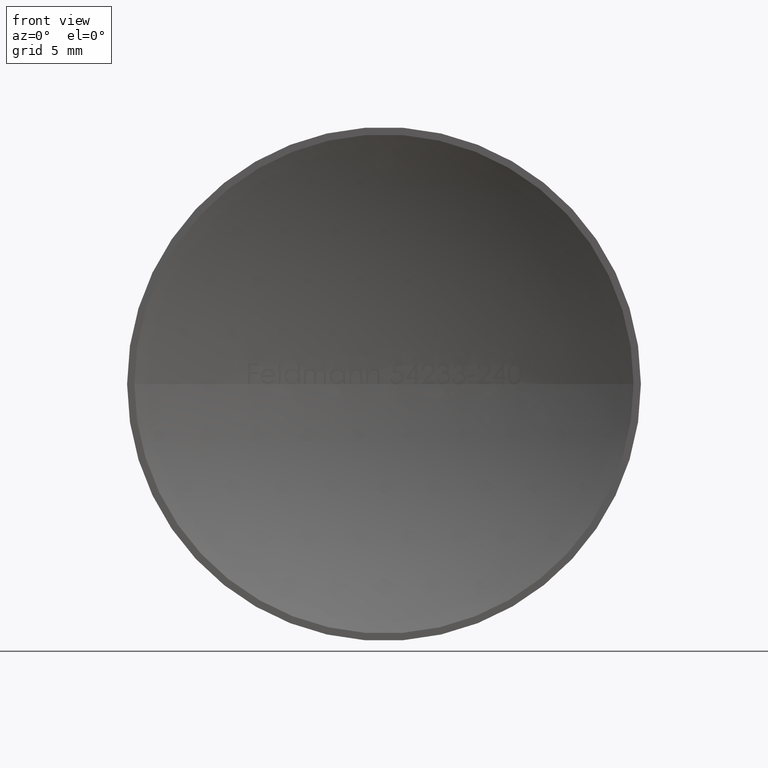
[diagram: clean part render]
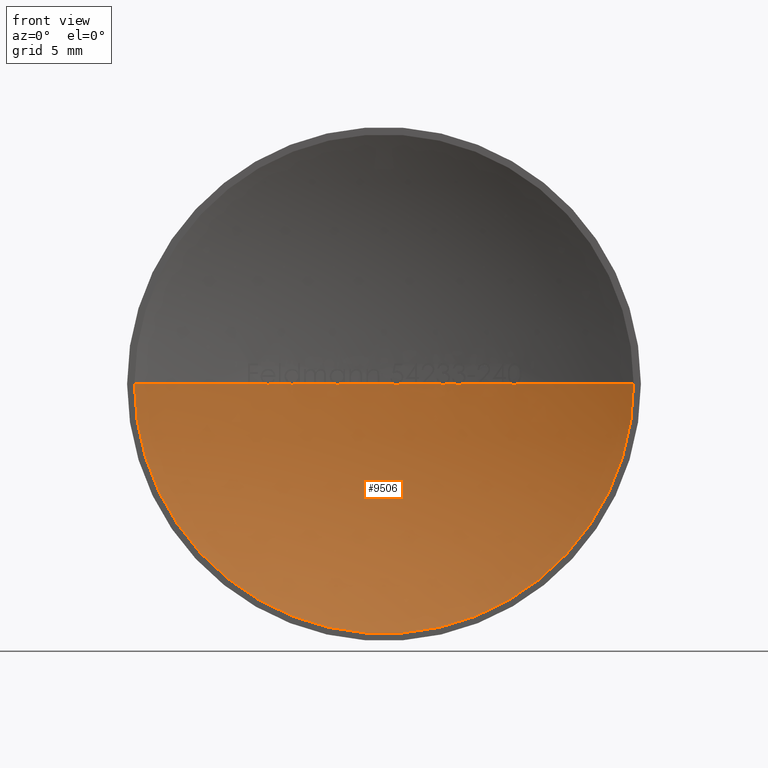
[diagram: same view with one face highlighted and labeled with its STEP entity id]
A machine part, front view. The second image highlights one B-rep face of the part: STEP entity #9506.
In plain terms, the highlighted spherical surface has radius 35.4903 mm.
Its self-contained STEP definition (entity closure, byte-faithful):
#7 = ORIENTED_EDGE ( 'NONE', *, *, #6377, .T. ) ;
#96 = CARTESIAN_POINT ( 'NONE',  ( -8.912727029914522700, 2.862643387927424200, 1.091494262885918000E-015 ) ) ;
#152 = CARTESIAN_POINT ( 'NONE',  ( 4.738650280871648400, 3.682238128339618800, -0.01193484231525396800 ) ) ;
#196 = DIRECTION ( 'NONE',  ( 0.0000000000000000000, -0.0000000000000000000, 1.000000000000000000 ) ) ;
#199 = CARTESIAN_POINT ( 'NONE',  ( 4.857634608246213400, 3.665993826901414300, -0.03308473231361908100 ) ) ;
#206 = CARTESIAN_POINT ( 'NONE',  ( 0.7862026345780440700, 3.991278402635006100, -0.03360360486888244700 ) ) ;
#237 = EDGE_CURVE ( 'NONE', #9605, #9849, #10697, .T. ) ;
#238 = DIRECTION ( 'NONE',  ( 1.000000000000000000, 0.0000000000000000000, 0.0000000000000000000 ) ) ;
#250 = CARTESIAN_POINT ( 'NONE',  ( -7.612335987580115300, 3.173996731575694100, -0.01696047008547008100 ) ) ;
#254 = DIRECTION ( 'NONE',  ( 1.000000000000000000, -5.836103876533815000E-015, 0.0000000000000000000 ) ) ;
#266 = CIRCLE ( 'NONE', #12068, 35.49031249999995900 ) ;
#340 = CARTESIAN_POINT ( 'NONE',  ( 0.7712341445280165300, 3.991606916056565700, -0.03272306016270470200 ) ) ;
#346 = VERTEX_POINT ( 'NONE', #4781 ) ;
#384 = EDGE_CURVE ( 'NONE', #11957, #5013, #3313, .T. ) ;
#389 = CARTESIAN_POINT ( 'NONE',  ( -6.083159253653982500, 3.474808390221402600, -0.01563185122384580500 ) ) ;
#405 = CARTESIAN_POINT ( 'NONE',  ( 0.9897536826248540800, 3.986196092851994200, -9.333595650279742100E-007 ) ) ;
#485 = AXIS2_PLACEMENT_3D ( 'NONE', #12727, #3240, #10574 ) ;
#530 = CARTESIAN_POINT ( 'NONE',  ( 4.709870946920004200, 3.686091462064369200, -1.083111697433709600E-005 ) ) ;
#613 = ORIENTED_EDGE ( 'NONE', *, *, #8095, .T. ) ;
#646 = CIRCLE ( 'NONE', #7047, 35.49031249999995900 ) ;
#661 = EDGE_CURVE ( 'NONE', #1162, #3881, #8726, .T. ) ;
#692 = CARTESIAN_POINT ( 'NONE',  ( 5.079526748854156900, 3.634617052351557700, 8.745878805524031600E-007 ) ) ;
#695 = CARTESIAN_POINT ( 'NONE',  ( -5.895875257787635900, 3.506843461905896100, 1.466442553997816500E-008 ) ) ;
#749 = EDGE_CURVE ( 'NONE', #1657, #11779, #8890, .T. ) ;
#750 = EDGE_CURVE ( 'NONE', #8212, #10213, #8391, .T. ) ;
#752 = CARTESIAN_POINT ( 'NONE',  ( 1.167220775306751800E-014, -31.49031249999995200, 0.0000000000000000000 ) ) ;
#778 = CARTESIAN_POINT ( 'NONE',  ( -5.976068418776135300, 3.493238271890783100, -0.01425313925265008300 ) ) ;
#783 = CARTESIAN_POINT ( 'NONE',  ( 0.8021772335737250600, 3.990916937597152300, -0.03392094017094018900 ) ) ;
#860 = CARTESIAN_POINT ( 'NONE',  ( -7.493894555113141300, 3.199807598128049200, -0.006278906087955830000 ) ) ;
#872 = AXIS2_PLACEMENT_3D ( 'NONE', #2036, #4208, #6304 ) ;
#893 = VERTEX_POINT ( 'NONE', #2529 ) ;
#933 = VERTEX_POINT ( 'NONE', #10305 ) ;
#968 = CARTESIAN_POINT ( 'NONE',  ( 1.167220775306751800E-014, -31.49031249999995200, 0.0000000000000000000 ) ) ;
#989 = EDGE_CURVE ( 'NONE', #8071, #7942, #11520, .T. ) ;
#995 = CARTESIAN_POINT ( 'NONE',  ( -5.895875257787635900, 3.506843461905896100, 1.466442553997816500E-008 ) ) ;
#1005 = VERTEX_POINT ( 'NONE', #6147 ) ;
#1026 = AXIS2_PLACEMENT_3D ( 'NONE', #8466, #6503, #238 ) ;
#1036 = CARTESIAN_POINT ( 'NONE',  ( -5.249265491452979000, 3.609651789837929700, 0.0000000000000000000 ) ) ;
#1045 = B_SPLINE_CURVE_WITH_KNOTS ( 'NONE', 3,
 ( #6029, #13182, #6917, #11132, #1743, #2911, #7043, #9057 ),
 .UNSPECIFIED., .F., .F.,
 ( 4, 2, 2, 4 ),
 ( 0.7256782824631503600, 0.8628391412315770100, 0.9314195706157885100, 1.000000000000000000 ),
 .UNSPECIFIED. ) ;
#1052 = ORIENTED_EDGE ( 'NONE', *, *, #8780, .T. ) ;
#1064 = ORIENTED_EDGE ( 'NONE', *, *, #8536, .T. ) ;
#1088 = EDGE_CURVE ( 'NONE', #12279, #1005, #3723, .T. ) ;
#1107 = CARTESIAN_POINT ( 'NONE',  ( 4.930149145806996800, 3.655883679406876300, -0.03239717609241320900 ) ) ;
#1150 = CARTESIAN_POINT ( 'NONE',  ( 4.912740006879511500, 3.658322459147409500, -0.03332670735054032300 ) ) ;
#1162 = VERTEX_POINT ( 'NONE', #2145 ) ;
#1166 = CARTESIAN_POINT ( 'NONE',  ( 1.167220775306751800E-014, -31.49031249999995200, 0.0000000000000000000 ) ) ;
#1175 = CARTESIAN_POINT ( 'NONE',  ( -4.587807158119646900, 3.702219475229674700, 2.809221675648403600E-016 ) ) ;
#1177 = AXIS2_PLACEMENT_3D ( 'NONE', #6424, #196, #8568 ) ;
#1212 = CARTESIAN_POINT ( 'NONE',  ( 3.721029639671566500, 3.804404617754978200, -0.01192091770584443500 ) ) ;
#1363 = DIRECTION ( 'NONE',  ( -1.224646799147353200E-016, 7.147165931888596700E-031, -1.000000000000000000 ) ) ;
#1408 = DIRECTION ( 'NONE',  ( -1.224646799147353200E-016, 7.147165931888596700E-031, -1.000000000000000000 ) ) ;
#1427 = DIRECTION ( 'NONE',  ( -1.224646799147353200E-016, 7.147165931888596700E-031, -1.000000000000000000 ) ) ;
#1436 = CARTESIAN_POINT ( 'NONE',  ( 4.893360627003214200, 3.661019658135483000, -0.03392094017094016800 ) ) ;
#1515 = DIRECTION ( 'NONE',  ( -1.224646799147353200E-016, 7.147165931888596700E-031, -1.000000000000000000 ) ) ;
#1518 = CARTESIAN_POINT ( 'NONE',  ( 1.167220775306751800E-014, -31.49031249999995200, 0.0000000000000000000 ) ) ;
#1558 = CARTESIAN_POINT ( 'NONE',  ( -16.36833833961147600, 1.926130716621757600E-013, 0.0000000000000000000 ) ) ;
#1579 = AXIS2_PLACEMENT_3D ( 'NONE', #5595, #1363, #12918 ) ;
#1581 = CARTESIAN_POINT ( 'NONE',  ( -1.161792200854695700, 3.980978993681057300, 0.0000000000000000000 ) ) ;
#1607 = DIRECTION ( 'NONE',  ( 0.0000000000000000000, 0.0000000000000000000, 1.000000000000000000 ) ) ;
#1622 = VERTEX_POINT ( 'NONE', #2981 ) ;
#1636 = EDGE_CURVE ( 'NONE', #10213, #13330, #6593, .T. ) ;
#1647 = DIRECTION ( 'NONE',  ( 1.000000000000000000, 0.0000000000000000000, 0.0000000000000000000 ) ) ;
#1657 = VERTEX_POINT ( 'NONE', #6011 ) ;
#1743 = CARTESIAN_POINT ( 'NONE',  ( 3.943504905861469700, 3.780219137978216600, -0.02985609928264710400 ) ) ;
#1748 = AXIS2_PLACEMENT_3D ( 'NONE', #4895, #1937, #13288 ) ;
#1781 = DIRECTION ( 'NONE',  ( -1.224646799147353200E-016, 7.147165931888596700E-031, -1.000000000000000000 ) ) ;
#1788 = CARTESIAN_POINT ( 'NONE',  ( -2.927778528899714700, 3.879029922437685000, 1.219121793722919000E-006 ) ) ;
#1789 = CARTESIAN_POINT ( 'NONE',  ( 0.9605264942511531100, 3.987011596853604200, -0.01174363848216255700 ) ) ;
#1822 = CARTESIAN_POINT ( 'NONE',  ( 1.167220775306751800E-014, -31.49031249999995200, 0.0000000000000000000 ) ) ;
#1878 = DIRECTION ( 'NONE',  ( 0.0000000000000000000, 0.0000000000000000000, 1.000000000000000000 ) ) ;
#1902 = CARTESIAN_POINT ( 'NONE',  ( 8.557882194845095800, 2.952738802935228600, -0.03392094017094011300 ) ) ;
#1914 = CARTESIAN_POINT ( 'NONE',  ( -6.775707799145291900, 3.347196957024310700, 2.548074665749584300E-015 ) ) ;
#1930 = CARTESIAN_POINT ( 'NONE',  ( 1.167220775306751800E-014, -31.49031249999995200, 0.0000000000000000000 ) ) ;
#1937 = DIRECTION ( 'NONE',  ( 0.0000000000000000000, -0.0000000000000000000, 1.000000000000000000 ) ) ;
#1974 = DIRECTION ( 'NONE',  ( 0.0000000000000000000, -0.0000000000000000000, 1.000000000000000000 ) ) ;
#2013 = CARTESIAN_POINT ( 'NONE',  ( 2.026776175213678600, 3.942080302113203100, -1.241042477781640500E-016 ) ) ;
#2036 = CARTESIAN_POINT ( 'NONE',  ( 1.167220775306751800E-014, -31.49031249999995200, 0.0000000000000000000 ) ) ;
#2052 = AXIS2_PLACEMENT_3D ( 'NONE', #12510, #5204, #11554 ) ;
#2053 = CARTESIAN_POINT ( 'NONE',  ( -3.066134982638879100, 3.867300682430025100, -0.01696047008547009500 ) ) ;
#2059 = AXIS2_PLACEMENT_3D ( 'NONE', #7237, #4062, #10396 ) ;
#2124 = AXIS2_PLACEMENT_3D ( 'NONE', #13133, #10021, #11086 ) ;
#2133 = CIRCLE ( 'NONE', #11493, 35.49031249999995900 ) ;
#2135 = B_SPLINE_CURVE_WITH_KNOTS ( 'NONE', 3,
 ( #9307, #3026, #3856, #1902 ),
 .UNSPECIFIED., .F., .F.,
 ( 4, 4 ),
 ( 0.8181484790372576300, 1.000000000000000000 ),
 .UNSPECIFIED. ) ;
#2145 = CARTESIAN_POINT ( 'NONE',  ( 2.166242032335205700E-013, 4.000000000000010700, 0.0000000000000000000 ) ) ;
#2196 = CARTESIAN_POINT ( 'NONE',  ( -7.711317038861733600, 3.152141726331227500, -0.01015247036170130100 ) ) ;
#2212 = CARTESIAN_POINT ( 'NONE',  ( 0.7312338477540589700, 3.992457936235606700, -0.02844736248867776200 ) ) ;
#2215 = ORIENTED_EDGE ( 'NONE', *, *, #3852, .F. ) ;
#2248 = FACE_OUTER_BOUND ( 'NONE', #7051, .T. ) ;
#2295 = CARTESIAN_POINT ( 'NONE',  ( 4.824764015741334500, 3.670517830935851500, -0.02986916063363950100 ) ) ;
#2345 = VERTEX_POINT ( 'NONE', #5226 ) ;
#2350 = DIRECTION ( 'NONE',  ( 1.000000000000000000, 0.0000000000000000000, 0.0000000000000000000 ) ) ;
#2529 = CARTESIAN_POINT ( 'NONE',  ( 6.080328525641033500, 3.475268953308236200, 1.337413506757545300E-018 ) ) ;
#2551 = CARTESIAN_POINT ( 'NONE',  ( -1.551883012820505700, 3.966054212653682900, 9.502542821510247000E-017 ) ) ;
#2562 = DIRECTION ( 'NONE',  ( 0.0000000000000000000, 0.0000000000000000000, 1.000000000000000000 ) ) ;
#2612 = ORIENTED_EDGE ( 'NONE', *, *, #3081, .T. ) ;
#2729 = CIRCLE ( 'NONE', #6448, 35.49031249999995900 ) ;
#2742 = CARTESIAN_POINT ( 'NONE',  ( 1.167220775306751800E-014, -31.49031249999995200, 0.0000000000000000000 ) ) ;
#2753 = ORIENTED_EDGE ( 'NONE', *, *, #5624, .T. ) ;
#2769 = CARTESIAN_POINT ( 'NONE',  ( 1.167220775306751800E-014, -31.49031249999995200, 0.0000000000000000000 ) ) ;
#2860 = VERTEX_POINT ( 'NONE', #11232 ) ;
#2894 = CARTESIAN_POINT ( 'NONE',  ( -7.563342789073042900, 3.184722667740678100, -0.01529230999279745900 ) ) ;
#2911 = CARTESIAN_POINT ( 'NONE',  ( 3.912621777061318100, 3.783656169891164800, -0.03239537069249125200 ) ) ;
#2919 = ORIENTED_EDGE ( 'NONE', *, *, #237, .T. ) ;
#2952 = DIRECTION ( 'NONE',  ( -1.224646799147353200E-016, 7.147165931888596700E-031, -1.000000000000000000 ) ) ;
#2964 = DIRECTION ( 'NONE',  ( 0.0000000000000000000, -0.0000000000000000000, 1.000000000000000000 ) ) ;
#2973 = EDGE_CURVE ( 'NONE', #10086, #893, #3282, .T. ) ;
#2974 = DIRECTION ( 'NONE',  ( -1.000000000000000000, 0.0000000000000000000, 1.224646799147353500E-016 ) ) ;
#2981 = CARTESIAN_POINT ( 'NONE',  ( -7.752301731158031100, 3.142967302244359800, 1.703029250838032900E-006 ) ) ;
#3026 = CARTESIAN_POINT ( 'NONE',  ( 8.668745782421961400, 2.925059987193418200, -0.02268819037094176000 ) ) ;
#3058 = CIRCLE ( 'NONE', #9403, 35.49031249999995900 ) ;
#3063 = CARTESIAN_POINT ( 'NONE',  ( -7.516361272325723600, 3.194945114605081600, -0.01038425927339940500 ) ) ;
#3081 = EDGE_CURVE ( 'NONE', #9102, #9021, #8934, .T. ) ;
#3228 = CARTESIAN_POINT ( 'NONE',  ( -6.167804125107203100, 3.459944436304577900, -3.884148645112148800E-006 ) ) ;
#3238 = ORIENTED_EDGE ( 'NONE', *, *, #12044, .T. ) ;
#3240 = DIRECTION ( 'NONE',  ( 0.0000000000000000000, 0.0000000000000000000, 1.000000000000000000 ) ) ;
#3263 = VERTEX_POINT ( 'NONE', #692 ) ;
#3282 = CIRCLE ( 'NONE', #9097, 35.49031249999995900 ) ;
#3288 = CARTESIAN_POINT ( 'NONE',  ( 1.167220775306751800E-014, -31.49031249999995200, 0.0000000000000000000 ) ) ;
#3297 = ORIENTED_EDGE ( 'NONE', *, *, #6110, .F. ) ;
#3313 = CIRCLE ( 'NONE', #10477, 35.49031249999995900 ) ;
#3321 = CARTESIAN_POINT ( 'NONE',  ( 4.972623591452943100, 3.649902626463817700, -0.02858148275096427900 ) ) ;
#3334 = CARTESIAN_POINT ( 'NONE',  ( 1.167220775306751800E-014, -31.49031249999995200, 0.0000000000000000000 ) ) ;
#3374 = CARTESIAN_POINT ( 'NONE',  ( 3.839939179464875200, 3.791656709185806200, -0.03308315886802053900 ) ) ;
#3428 = CARTESIAN_POINT ( 'NONE',  ( 0.6620947279712639000, 3.993834020710567600, -0.01235931414577004300 ) ) ;
#3433 = ORIENTED_EDGE ( 'NONE', *, *, #12061, .F. ) ;
#3439 = ORIENTED_EDGE ( 'NONE', *, *, #11394, .T. ) ;
#3490 = ORIENTED_EDGE ( 'NONE', *, *, #749, .T. ) ;
#3505 = ORIENTED_EDGE ( 'NONE', *, *, #9985, .T. ) ;
#3509 = CARTESIAN_POINT ( 'NONE',  ( 1.167220775306751800E-014, -31.49031249999995200, 0.0000000000000000000 ) ) ;
#3554 = CARTESIAN_POINT ( 'NONE',  ( 7.725494123931629700, 3.148957438737956400, -4.730500825352149000E-016 ) ) ;
#3570 = DIRECTION ( 'NONE',  ( 0.0000000000000000000, 0.0000000000000000000, 1.000000000000000000 ) ) ;
#3574 = CARTESIAN_POINT ( 'NONE',  ( -6.167804125107203100, 3.459944436304577900, -3.884148645112148800E-006 ) ) ;
#3610 = VERTEX_POINT ( 'NONE', #530 ) ;
#3628 = ORIENTED_EDGE ( 'NONE', *, *, #4128, .T. ) ;
#3663 = CARTESIAN_POINT ( 'NONE',  ( 1.167220775306751800E-014, -31.49031249999995200, 0.0000000000000000000 ) ) ;
#3723 = B_SPLINE_CURVE_WITH_KNOTS ( 'NONE', 3,
 ( #9326, #12406, #11542, #5237 ),
 .UNSPECIFIED., .F., .F.,
 ( 4, 4 ),
 ( 0.0000000000000000000, 0.1696776253760546600 ),
 .UNSPECIFIED. ) ;
#3747 = CIRCLE ( 'NONE', #11522, 35.49031249999995900 ) ;
#3750 = DIRECTION ( 'NONE',  ( -1.224646799147353200E-016, 7.147165931888596700E-031, -1.000000000000000000 ) ) ;
#3752 = CARTESIAN_POINT ( 'NONE',  ( -7.469815011952719400, 3.204991617974769300, -1.625670144759586600E-006 ) ) ;
#3766 = ORIENTED_EDGE ( 'NONE', *, *, #4573, .T. ) ;
#3831 = ORIENTED_EDGE ( 'NONE', *, *, #8558, .T. ) ;
#3852 = EDGE_CURVE ( 'NONE', #9102, #7241, #4746, .T. ) ;
#3856 = CARTESIAN_POINT ( 'NONE',  ( 8.617690300652519400, 2.937879455545473900, -0.03305247004160604500 ) ) ;
#3857 = CARTESIAN_POINT ( 'NONE',  ( -2.281183226495722600, 3.926611200892084200, 0.0000000000000000000 ) ) ;
#3868 = CARTESIAN_POINT ( 'NONE',  ( -2.950142989804801700, 3.877178806243084500, -0.005772695945106286200 ) ) ;
#3872 = CARTESIAN_POINT ( 'NONE',  ( 7.844217414529922800, 3.122265192238446600, 1.639089336625956200E-015 ) ) ;
#3881 = VERTEX_POINT ( 'NONE', #12337 ) ;
#3924 = EDGE_CURVE ( 'NONE', #11986, #5584, #4597, .T. ) ;
#4024 = CARTESIAN_POINT ( 'NONE',  ( -7.552314666451671600, 3.187126387203537400, -0.01445731734477937200 ) ) ;
#4062 = DIRECTION ( 'NONE',  ( 0.0000000000000000000, -0.0000000000000000000, 1.000000000000000000 ) ) ;
#4087 = ORIENTED_EDGE ( 'NONE', *, *, #6301, .T. ) ;
#4089 = CARTESIAN_POINT ( 'NONE',  ( -3.007948629330476500, 3.872301388996873600, -0.01425425282021452200 ) ) ;
#4092 = CARTESIAN_POINT ( 'NONE',  ( 1.167220775306751800E-014, -31.49031249999995200, 0.0000000000000000000 ) ) ;
#4095 = CARTESIAN_POINT ( 'NONE',  ( 1.167220775306751800E-014, -31.49031249999995200, 0.0000000000000000000 ) ) ;
#4128 = EDGE_CURVE ( 'NONE', #10609, #12605, #12317, .T. ) ;
#4167 = DIRECTION ( 'NONE',  ( 0.0000000000000000000, 0.0000000000000000000, 1.000000000000000000 ) ) ;
#4187 = CARTESIAN_POINT ( 'NONE',  ( -7.612335987580115300, 3.173996731575694100, -0.01696047008547008100 ) ) ;
#4201 = EDGE_CURVE ( 'NONE', #346, #8686, #7892, .T. ) ;
#4208 = DIRECTION ( 'NONE',  ( 0.0000000000000000000, -0.0000000000000000000, 1.000000000000000000 ) ) ;
#4231 = ORIENTED_EDGE ( 'NONE', *, *, #9433, .T. ) ;
#4243 = VERTEX_POINT ( 'NONE', #1436 ) ;
#4269 = AXIS2_PLACEMENT_3D ( 'NONE', #752, #8055, #7735 ) ;
#4336 = CARTESIAN_POINT ( 'NONE',  ( 3.692257043258379200, 3.807414307108429000, -1.119015963534720900E-005 ) ) ;
#4379 = CARTESIAN_POINT ( 'NONE',  ( 4.893360627003214200, 3.661019658135483000, -0.03392094017094016800 ) ) ;
#4408 = CARTESIAN_POINT ( 'NONE',  ( 8.719436717991246900, 2.912211831430556100, 1.935463149687364800E-005 ) ) ;
#4420 = VERTEX_POINT ( 'NONE', #12930 ) ;
#4427 = CARTESIAN_POINT ( 'NONE',  ( 1.167220775306751800E-014, -31.49031249999995200, 0.0000000000000000000 ) ) ;
#4437 = VERTEX_POINT ( 'NONE', #4408 ) ;
#4474 = B_SPLINE_CURVE_WITH_KNOTS ( 'NONE', 3,
 ( #8480, #206, #340, #7647, #2212, #6516, #3428, #8617 ),
 .UNSPECIFIED., .F., .F.,
 ( 4, 2, 2, 4 ),
 ( 0.0000000000000000000, 0.07062881580465164800, 0.1412576316093033000, 0.2825152632186060900 ),
 .UNSPECIFIED. ) ;
#4491 = EDGE_CURVE ( 'NONE', #11315, #9605, #10342, .T. ) ;
#4516 = AXIS2_PLACEMENT_3D ( 'NONE', #9115, #9156, #4843 ) ;
#4573 = EDGE_CURVE ( 'NONE', #3881, #10030, #11174, .T. ) ;
#4577 = CARTESIAN_POINT ( 'NONE',  ( 6.979233440170947500, 3.306994607522796500, 2.840960717878346200E-015 ) ) ;
#4597 = CIRCLE ( 'NONE', #1748, 35.49031249999995900 ) ;
#4632 = DIRECTION ( 'NONE',  ( 1.000000000000000000, 0.0000000000000000000, 0.0000000000000000000 ) ) ;
#4641 = ORIENTED_EDGE ( 'NONE', *, *, #11786, .T. ) ;
#4655 = CARTESIAN_POINT ( 'NONE',  ( 8.557882194845095800, 2.952738802935228600, -0.03392094017094011300 ) ) ;
#4701 = CIRCLE ( 'NONE', #10035, 35.49031249999995900 ) ;
#4738 = CARTESIAN_POINT ( 'NONE',  ( 8.397092143243027000, 2.992308001380843400, 4.298005807606711700E-006 ) ) ;
#4744 = AXIS2_PLACEMENT_3D ( 'NONE', #968, #9325, #11311 ) ;
#4746 = CIRCLE ( 'NONE', #1579, 35.49031249999995900 ) ;
#4781 = CARTESIAN_POINT ( 'NONE',  ( -8.794003739316229600, 2.893226869595866300, 3.182339424720998100E-015 ) ) ;
#4820 = DIRECTION ( 'NONE',  ( 1.000000000000000000, 0.0000000000000000000, 0.0000000000000000000 ) ) ;
#4834 = EDGE_CURVE ( 'NONE', #5202, #10662, #5771, .T. ) ;
#4843 = DIRECTION ( 'NONE',  ( 1.000000000000000000, 0.0000000000000000000, 0.0000000000000000000 ) ) ;
#4868 = CARTESIAN_POINT ( 'NONE',  ( -5.918367854859435600, 3.503054350828732400, -0.005803744880819460300 ) ) ;
#4895 = CARTESIAN_POINT ( 'NONE',  ( 1.167220775306751800E-014, -31.49031249999995200, 0.0000000000000000000 ) ) ;
#4942 = EDGE_CURVE ( 'NONE', #5013, #12279, #10954, .T. ) ;
#4988 = CARTESIAN_POINT ( 'NONE',  ( 1.167220775306751800E-014, -31.49031249999995200, 0.0000000000000000000 ) ) ;
#5002 = VERTEX_POINT ( 'NONE', #6274 ) ;
#5013 = VERTEX_POINT ( 'NONE', #8047 ) ;
#5039 = AXIS2_PLACEMENT_3D ( 'NONE', #1166, #5532, #2350 ) ;
#5071 = ORIENTED_EDGE ( 'NONE', *, *, #4942, .T. ) ;
#5103 = ORIENTED_EDGE ( 'NONE', *, *, #10758, .T. ) ;
#5166 = CIRCLE ( 'NONE', #11620, 35.49031249999995900 ) ;
#5169 = CIRCLE ( 'NONE', #8357, 35.49031249999995900 ) ;
#5183 = EDGE_CURVE ( 'NONE', #1622, #346, #12140, .T. ) ;
#5188 = DIRECTION ( 'NONE',  ( 1.000000000000000000, 0.0000000000000000000, 0.0000000000000000000 ) ) ;
#5202 = VERTEX_POINT ( 'NONE', #1175 ) ;
#5204 = DIRECTION ( 'NONE',  ( 0.0000000000000000000, -0.0000000000000000000, 1.000000000000000000 ) ) ;
#5214 = ORIENTED_EDGE ( 'NONE', *, *, #4491, .T. ) ;
#5226 = CARTESIAN_POINT ( 'NONE',  ( 0.6348561596841292300, 3.994321200127662200, 8.362090033892922300E-006 ) ) ;
#5237 = CARTESIAN_POINT ( 'NONE',  ( -3.199786123602351900, 3.855460057867441400, -1.178498570313778200E-006 ) ) ;
#5239 = CARTESIAN_POINT ( 'NONE',  ( -2.671274038461530300, 3.899326892894333000, 1.635683600423802100E-016 ) ) ;
#5245 = CARTESIAN_POINT ( 'NONE',  ( -7.664656773566207400, 3.162507603545226400, -0.01573908818981123100 ) ) ;
#5339 = CARTESIAN_POINT ( 'NONE',  ( -7.752301731158031100, 3.142967302244359800, 1.703029250838032900E-006 ) ) ;
#5426 = DIRECTION ( 'NONE',  ( 0.0000000000000000000, 0.0000000000000000000, 1.000000000000000000 ) ) ;
#5441 = CARTESIAN_POINT ( 'NONE',  ( -0.4324919871794804500, 3.997364685590524900, 2.648249638782500500E-017 ) ) ;
#5452 = ORIENTED_EDGE ( 'NONE', *, *, #4201, .T. ) ;
#5479 = CARTESIAN_POINT ( 'NONE',  ( 3.875732421875008400, 3.787723569366193000, -0.03392094017093993200 ) ) ;
#5531 = CARTESIAN_POINT ( 'NONE',  ( 3.875732421875008400, 3.787723569366193000, -0.03392094017093993200 ) ) ;
#5532 = DIRECTION ( 'NONE',  ( 0.0000000000000000000, 0.0000000000000000000, 1.000000000000000000 ) ) ;
#5557 = CARTESIAN_POINT ( 'NONE',  ( 1.167220775306751800E-014, -31.49031249999995200, 0.0000000000000000000 ) ) ;
#5584 = VERTEX_POINT ( 'NONE', #1914 ) ;
#5595 = CARTESIAN_POINT ( 'NONE',  ( 1.167220775306751800E-014, -31.49031249999995200, 0.0000000000000000000 ) ) ;
#5624 = EDGE_CURVE ( 'NONE', #8311, #6299, #12627, .T. ) ;
#5630 = ORIENTED_EDGE ( 'NONE', *, *, #7121, .F. ) ;
#5652 = ORIENTED_EDGE ( 'NONE', *, *, #6706, .T. ) ;
#5658 = DIRECTION ( 'NONE',  ( -1.000000000000000000, 0.0000000000000000000, 1.224646799147353500E-016 ) ) ;
#5675 = CIRCLE ( 'NONE', #12496, 35.49031249999995900 ) ;
#5743 = AXIS2_PLACEMENT_3D ( 'NONE', #11748, #7581, #10746 ) ;
#5758 = CARTESIAN_POINT ( 'NONE',  ( 3.692257043258379200, 3.807414307108429000, -1.119015963534720900E-005 ) ) ;
#5771 = CIRCLE ( 'NONE', #10865, 35.49031249999995900 ) ;
#5806 = DIRECTION ( 'NONE',  ( 1.000000000000000000, 0.0000000000000000000, 0.0000000000000000000 ) ) ;
#5857 = VERTEX_POINT ( 'NONE', #7071 ) ;
#5986 = CARTESIAN_POINT ( 'NONE',  ( 0.9897536826248540800, 3.986196092851994200, -9.333595650279742100E-007 ) ) ;
#5998 = VERTEX_POINT ( 'NONE', #5479 ) ;
#6011 = CARTESIAN_POINT ( 'NONE',  ( -5.520633012820502100, 3.567994539636312600, 2.862269566641043600E-015 ) ) ;
#6029 = CARTESIAN_POINT ( 'NONE',  ( 4.061900690707224400, 3.766789352153927100, 7.054556027255272900E-007 ) ) ;
#6110 = EDGE_CURVE ( 'NONE', #12886, #10979, #9167, .T. ) ;
#6123 = ORIENTED_EDGE ( 'NONE', *, *, #12117, .T. ) ;
#6147 = CARTESIAN_POINT ( 'NONE',  ( -3.199786123602351900, 3.855460057867441400, -1.178498570313778200E-006 ) ) ;
#6153 = CIRCLE ( 'NONE', #11121, 35.49031249999995900 ) ;
#6185 = CIRCLE ( 'NONE', #13531, 35.49031249999995900 ) ;
#6221 = DIRECTION ( 'NONE',  ( 1.000000000000000000, 0.0000000000000000000, 0.0000000000000000000 ) ) ;
#6225 = CARTESIAN_POINT ( 'NONE',  ( -3.016302406174266700, 3.871589249052760800, -0.01493547886087437200 ) ) ;
#6274 = CARTESIAN_POINT ( 'NONE',  ( -6.034217247596143500, 3.483252029497484200, -0.01696047008546999100 ) ) ;
#6282 = CARTESIAN_POINT ( 'NONE',  ( 4.961028218349580000, 3.651540521006941800, -0.02985506588910989000 ) ) ;
#6299 = VERTEX_POINT ( 'NONE', #1581 ) ;
#6301 = EDGE_CURVE ( 'NONE', #8071, #7488, #2133, .T. ) ;
#6304 = DIRECTION ( 'NONE',  ( 1.000000000000000000, 0.0000000000000000000, 0.0000000000000000000 ) ) ;
#6305 = CARTESIAN_POINT ( 'NONE',  ( 1.167220775306751800E-014, -31.49031249999995200, 0.0000000000000000000 ) ) ;
#6311 = CARTESIAN_POINT ( 'NONE',  ( -3.926348824786317000, 3.782142280660729700, 2.404195260305402800E-016 ) ) ;
#6327 = CIRCLE ( 'NONE', #5743, 35.49031249999995900 ) ;
#6377 = EDGE_CURVE ( 'NONE', #13330, #1622, #11544, .T. ) ;
#6413 = CARTESIAN_POINT ( 'NONE',  ( 5.018003665536393300, 3.643466777773518600, -0.02084468116400034500 ) ) ;
#6424 = CARTESIAN_POINT ( 'NONE',  ( 1.167220775306751800E-014, -31.49031249999995200, 0.0000000000000000000 ) ) ;
#6448 = AXIS2_PLACEMENT_3D ( 'NONE', #5557, #1515, #5658 ) ;
#6465 = CARTESIAN_POINT ( 'NONE',  ( -5.639356303418792600, 3.549093057611099500, 3.453109823116769200E-016 ) ) ;
#6503 = DIRECTION ( 'NONE',  ( 0.0000000000000000000, -0.0000000000000000000, 1.000000000000000000 ) ) ;
#6504 = B_SPLINE_CURVE_WITH_KNOTS ( 'NONE', 3,
 ( #4655, #6738, #13034, #4738 ),
 .UNSPECIFIED., .F., .F.,
 ( 4, 4 ),
 ( 0.0000000000000000000, 0.1812354996723299400 ),
 .UNSPECIFIED. ) ;
#6516 = CARTESIAN_POINT ( 'NONE',  ( 0.6866713570618806500, 3.993363728637360200, -0.01999495369030389700 ) ) ;
#6518 = ORIENTED_EDGE ( 'NONE', *, *, #10538, .T. ) ;
#6557 = CARTESIAN_POINT ( 'NONE',  ( 3.807042737749891400, 3.795219342206048700, -0.02984480702642053000 ) ) ;
#6593 = B_SPLINE_CURVE_WITH_KNOTS ( 'NONE', 3,
 ( #9218, #860, #3063, #4024, #2894, #8117, #12339, #13380, #10316, #11382 ),
 .UNSPECIFIED., .F., .F.,
 ( 4, 2, 2, 2, 4 ),
 ( 0.7352293779619159000, 0.8676146889809557300, 0.9338073444904778600, 0.9669036722452388800, 1.000000000000000000 ),
 .UNSPECIFIED. ) ;
#6599 = ORIENTED_EDGE ( 'NONE', *, *, #750, .T. ) ;
#6618 = CARTESIAN_POINT ( 'NONE',  ( 1.167220775306751800E-014, -31.49031249999995200, 0.0000000000000000000 ) ) ;
#6706 = EDGE_CURVE ( 'NONE', #5857, #5998, #1045, .T. ) ;
#6738 = CARTESIAN_POINT ( 'NONE',  ( 8.498569854534602900, 2.967476817056396800, -0.03291402819113168500 ) ) ;
#6758 = CARTESIAN_POINT ( 'NONE',  ( 3.315771901709408300, 3.844768341049333000, 2.884866243306931900E-015 ) ) ;
#6779 = ORIENTED_EDGE ( 'NONE', *, *, #8716, .F. ) ;
#6861 = ORIENTED_EDGE ( 'NONE', *, *, #384, .T. ) ;
#6880 = VERTEX_POINT ( 'NONE', #1558 ) ;
#6888 = CIRCLE ( 'NONE', #11342, 35.49031249999995900 ) ;
#6910 = DIRECTION ( 'NONE',  ( 0.0000000000000000000, 0.0000000000000000000, 1.000000000000000000 ) ) ;
#6913 = CARTESIAN_POINT ( 'NONE',  ( -6.034217247596143500, 3.483252029497484200, -0.01696047008546999100 ) ) ;
#6917 = CARTESIAN_POINT ( 'NONE',  ( 4.000325046364507000, 3.773836377772468200, -0.02085499717866742500 ) ) ;
#6924 = ORIENTED_EDGE ( 'NONE', *, *, #13176, .T. ) ;
#6941 = ORIENTED_EDGE ( 'NONE', *, *, #8801, .T. ) ;
#7023 = CIRCLE ( 'NONE', #12217, 35.49031249999995900 ) ;
#7043 = CARTESIAN_POINT ( 'NONE',  ( 3.895178220640830100, 3.785587779080750600, -0.03332467073820743300 ) ) ;
#7047 = AXIS2_PLACEMENT_3D ( 'NONE', #4092, #1878, #13496 ) ;
#7051 = EDGE_LOOP ( 'NONE', ( #9630, #10038, #3766, #6518, #2753, #5103, #3628, #1064, #9011, #4231, #6941, #6861, #5071, #9509, #7156, #5214, #2919, #6123, #11540, #3831, #3439, #3490, #11237, #6924, #12784, #9899, #3238, #6599, #7202, #7, #9405, #5452, #613, #9012, #5630, #9728, #1052, #9675, #4087, #11340, #12149, #3433, #11511, #9125, #6779, #5652, #4641, #3297, #11689, #7178, #11357, #2215, #2612, #3505 ) ) ;
#7071 = CARTESIAN_POINT ( 'NONE',  ( 4.061900690707224400, 3.766789352153927100, 7.054556027255272900E-007 ) ) ;
#7106 = DIRECTION ( 'NONE',  ( 1.000000000000000000, 0.0000000000000000000, 0.0000000000000000000 ) ) ;
#7121 = EDGE_CURVE ( 'NONE', #4437, #933, #6888, .T. ) ;
#7156 = ORIENTED_EDGE ( 'NONE', *, *, #8614, .T. ) ;
#7178 = ORIENTED_EDGE ( 'NONE', *, *, #9536, .F. ) ;
#7202 = ORIENTED_EDGE ( 'NONE', *, *, #1636, .T. ) ;
#7237 = CARTESIAN_POINT ( 'NONE',  ( 1.167220775306751800E-014, -31.49031249999995200, 0.0000000000000000000 ) ) ;
#7241 = VERTEX_POINT ( 'NONE', #2013 ) ;
#7248 = CARTESIAN_POINT ( 'NONE',  ( -2.162459935897429900, 3.934058325369582700, 2.892156156206511400E-015 ) ) ;
#7268 = CARTESIAN_POINT ( 'NONE',  ( -3.050866194604906900, 3.868624928157844900, -0.01660652534261036400 ) ) ;
#7356 = CARTESIAN_POINT ( 'NONE',  ( 5.079526748854156900, 3.634617052351557700, 8.745878805524031600E-007 ) ) ;
#7458 = CARTESIAN_POINT ( 'NONE',  ( 3.747013632713128900, 3.801651940823875400, -0.01890107887476527600 ) ) ;
#7471 = CARTESIAN_POINT ( 'NONE',  ( -3.807625534188024300, 3.795155743160044000, 2.880815716026763700E-015 ) ) ;
#7488 = VERTEX_POINT ( 'NONE', #3554 ) ;
#7489 = CARTESIAN_POINT ( 'NONE',  ( 5.049817501542500000, 3.638913589810767800, -0.01180620886013447400 ) ) ;
#7508 = CIRCLE ( 'NONE', #8440, 35.49031249999995900 ) ;
#7576 = AXIS2_PLACEMENT_3D ( 'NONE', #12871, #11836, #254 ) ;
#7581 = DIRECTION ( 'NONE',  ( 0.0000000000000000000, 0.0000000000000000000, 1.000000000000000000 ) ) ;
#7625 = CARTESIAN_POINT ( 'NONE',  ( -1.043068910256403000, 3.984668664140361000, 2.236085656735648200E-015 ) ) ;
#7647 = CARTESIAN_POINT ( 'NONE',  ( 0.7432986644230201700, 3.992205502720897600, -0.03002721996198704600 ) ) ;
#7696 = CARTESIAN_POINT ( 'NONE',  ( -6.034217247596143500, 3.483252029497484200, -0.01696047008546999100 ) ) ;
#7712 = CARTESIAN_POINT ( 'NONE',  ( 0.8021772335737250600, 3.990916937597152300, -0.03392094017094018900 ) ) ;
#7735 = DIRECTION ( 'NONE',  ( -1.000000000000000000, 0.0000000000000000000, 1.224646799147353500E-016 ) ) ;
#7834 = CIRCLE ( 'NONE', #1177, 35.49031249999995900 ) ;
#7892 = CIRCLE ( 'NONE', #13485, 35.49031249999995900 ) ;
#7942 = VERTEX_POINT ( 'NONE', #12102 ) ;
#7968 = CARTESIAN_POINT ( 'NONE',  ( 1.167220775306751800E-014, -31.49031249999995200, 0.0000000000000000000 ) ) ;
#8047 = CARTESIAN_POINT ( 'NONE',  ( -2.927778528899714700, 3.879029922437685000, 1.219121793722919000E-006 ) ) ;
#8055 = DIRECTION ( 'NONE',  ( -1.224646799147353200E-016, 7.147165931888596700E-031, -1.000000000000000000 ) ) ;
#8071 = VERTEX_POINT ( 'NONE', #3872 ) ;
#8085 = CARTESIAN_POINT ( 'NONE',  ( -6.005970849244080000, 3.488115921741382400, -0.01613154676087472100 ) ) ;
#8093 = CARTESIAN_POINT ( 'NONE',  ( -2.973096609517942700, 3.875255888163350500, -0.01009457276361739300 ) ) ;
#8095 = EDGE_CURVE ( 'NONE', #8686, #6880, #3747, .T. ) ;
#8117 = CARTESIAN_POINT ( 'NONE',  ( -7.582459682011282200, 3.180545106417116900, -0.01618604088497467600 ) ) ;
#8183 = DIRECTION ( 'NONE',  ( 1.000000000000000000, 0.0000000000000000000, 0.0000000000000000000 ) ) ;
#8210 = AXIS2_PLACEMENT_3D ( 'NONE', #1930, #11279, #2974 ) ;
#8212 = VERTEX_POINT ( 'NONE', #11626 ) ;
#8268 = EDGE_CURVE ( 'NONE', #3263, #4243, #10608, .T. ) ;
#8274 = CARTESIAN_POINT ( 'NONE',  ( 1.167220775306751800E-014, -31.49031249999995200, 0.0000000000000000000 ) ) ;
#8311 = VERTEX_POINT ( 'NONE', #7625 ) ;
#8357 = AXIS2_PLACEMENT_3D ( 'NONE', #12379, #1974, #12459 ) ;
#8367 = AXIS2_PLACEMENT_3D ( 'NONE', #4427, #9650, #10618 ) ;
#8376 = CARTESIAN_POINT ( 'NONE',  ( -5.130542200854691300, 3.627201906246150900, 2.867103440774689200E-015 ) ) ;
#8387 = EDGE_CURVE ( 'NONE', #4420, #7241, #7508, .T. ) ;
#8391 = CIRCLE ( 'NONE', #1026, 35.49031249999995900 ) ;
#8393 = DIRECTION ( 'NONE',  ( 1.000000000000000000, 0.0000000000000000000, 0.0000000000000000000 ) ) ;
#8422 = B_SPLINE_CURVE_WITH_KNOTS ( 'NONE', 3,
 ( #7696, #389, #9853, #3574 ),
 .UNSPECIFIED., .F., .F.,
 ( 4, 4 ),
 ( 0.0000000000000000000, 0.1704098439153387000 ),
 .UNSPECIFIED. ) ;
#8440 = AXIS2_PLACEMENT_3D ( 'NONE', #1518, #6910, #5806 ) ;
#8466 = CARTESIAN_POINT ( 'NONE',  ( 1.167220775306751800E-014, -31.49031249999995200, 0.0000000000000000000 ) ) ;
#8480 = CARTESIAN_POINT ( 'NONE',  ( 0.8021772335737250600, 3.990916937597152300, -0.03392094017094018900 ) ) ;
#8490 = EDGE_CURVE ( 'NONE', #12670, #12194, #12421, .T. ) ;
#8525 = CIRCLE ( 'NONE', #4516, 35.49031249999995900 ) ;
#8536 = EDGE_CURVE ( 'NONE', #12605, #12670, #7834, .T. ) ;
#8540 = EDGE_CURVE ( 'NONE', #12886, #2860, #3058, .T. ) ;
#8558 = EDGE_CURVE ( 'NONE', #10662, #12682, #646, .T. ) ;
#8568 = DIRECTION ( 'NONE',  ( 1.000000000000000000, 0.0000000000000000000, 0.0000000000000000000 ) ) ;
#8608 = CARTESIAN_POINT ( 'NONE',  ( 4.709870946920004200, 3.686091462064369200, -1.083111697433709600E-005 ) ) ;
#8614 = EDGE_CURVE ( 'NONE', #1005, #11315, #11447, .T. ) ;
#8617 = CARTESIAN_POINT ( 'NONE',  ( 0.6348561596841292300, 3.994321200127662200, 8.362090033892922300E-006 ) ) ;
#8686 = VERTEX_POINT ( 'NONE', #96 ) ;
#8716 = EDGE_CURVE ( 'NONE', #5857, #3610, #7023, .T. ) ;
#8726 = CIRCLE ( 'NONE', #2059, 35.49031249999995900 ) ;
#8780 = EDGE_CURVE ( 'NONE', #12161, #7942, #6504, .T. ) ;
#8801 = EDGE_CURVE ( 'NONE', #10952, #11957, #9804, .T. ) ;
#8890 = CIRCLE ( 'NONE', #8367, 35.49031249999995900 ) ;
#8893 = DIRECTION ( 'NONE',  ( 1.000000000000000000, 0.0000000000000000000, 0.0000000000000000000 ) ) ;
#8934 = B_SPLINE_CURVE_WITH_KNOTS ( 'NONE', 3,
 ( #5986, #1789, #11226, #13310, #11136, #783 ),
 .UNSPECIFIED., .F., .F.,
 ( 4, 2, 4 ),
 ( 0.7374008106502466500, 0.8687004053251232700, 1.000000000000000000 ),
 .UNSPECIFIED. ) ;
#8974 = DIRECTION ( 'NONE',  ( 1.000000000000000000, 0.0000000000000000000, 0.0000000000000000000 ) ) ;
#9011 = ORIENTED_EDGE ( 'NONE', *, *, #8490, .T. ) ;
#9012 = ORIENTED_EDGE ( 'NONE', *, *, #11372, .T. ) ;
#9021 = VERTEX_POINT ( 'NONE', #7712 ) ;
#9057 = CARTESIAN_POINT ( 'NONE',  ( 3.875732421875008400, 3.787723569366193000, -0.03392094017093993200 ) ) ;
#9097 = AXIS2_PLACEMENT_3D ( 'NONE', #12720, #5426, #12633 ) ;
#9102 = VERTEX_POINT ( 'NONE', #405 ) ;
#9115 = CARTESIAN_POINT ( 'NONE',  ( 1.167220775306751800E-014, -31.49031249999995200, 0.0000000000000000000 ) ) ;
#9125 = ORIENTED_EDGE ( 'NONE', *, *, #11719, .T. ) ;
#9137 = DIRECTION ( 'NONE',  ( 0.0000000000000000000, 0.0000000000000000000, -1.000000000000000000 ) ) ;
#9156 = DIRECTION ( 'NONE',  ( 0.0000000000000000000, -0.0000000000000000000, 1.000000000000000000 ) ) ;
#9167 = CIRCLE ( 'NONE', #4269, 35.49031249999995900 ) ;
#9178 = DIRECTION ( 'NONE',  ( 1.000000000000000000, 0.0000000000000000000, 0.0000000000000000000 ) ) ;
#9218 = CARTESIAN_POINT ( 'NONE',  ( -7.469815011952719400, 3.204991617974769300, -1.625670144759586600E-006 ) ) ;
#9231 = CARTESIAN_POINT ( 'NONE',  ( 1.167220775306751800E-014, -31.49031249999995200, 0.0000000000000000000 ) ) ;
#9307 = CARTESIAN_POINT ( 'NONE',  ( 8.719436717991246900, 2.912211831430556100, 1.935463149687364800E-005 ) ) ;
#9325 = DIRECTION ( 'NONE',  ( 0.0000000000000000000, -0.0000000000000000000, 1.000000000000000000 ) ) ;
#9326 = CARTESIAN_POINT ( 'NONE',  ( -3.066134982638879100, 3.867300682430025100, -0.01696047008547009500 ) ) ;
#9403 = AXIS2_PLACEMENT_3D ( 'NONE', #3288, #12686, #10623 ) ;
#9405 = ORIENTED_EDGE ( 'NONE', *, *, #5183, .T. ) ;
#9433 = EDGE_CURVE ( 'NONE', #12194, #10952, #9465, .T. ) ;
#9465 = CIRCLE ( 'NONE', #2052, 35.49031249999995900 ) ;
#9506 = ADVANCED_FACE ( 'NONE', ( #2248 ), #12411, .F. ) ;
#9509 = ORIENTED_EDGE ( 'NONE', *, *, #1088, .T. ) ;
#9516 = CARTESIAN_POINT ( 'NONE',  ( 4.893360627003214200, 3.661019658135483000, -0.03392094017094016800 ) ) ;
#9536 = EDGE_CURVE ( 'NONE', #4420, #2860, #4701, .T. ) ;
#9605 = VERTEX_POINT ( 'NONE', #6311 ) ;
#9622 = DIRECTION ( 'NONE',  ( 1.000000000000000000, 0.0000000000000000000, 0.0000000000000000000 ) ) ;
#9630 = ORIENTED_EDGE ( 'NONE', *, *, #11199, .F. ) ;
#9650 = DIRECTION ( 'NONE',  ( 0.0000000000000000000, 0.0000000000000000000, 1.000000000000000000 ) ) ;
#9675 = ORIENTED_EDGE ( 'NONE', *, *, #989, .F. ) ;
#9728 = ORIENTED_EDGE ( 'NONE', *, *, #11002, .T. ) ;
#9804 = CIRCLE ( 'NONE', #2124, 35.49031249999995900 ) ;
#9811 = DIRECTION ( 'NONE',  ( 0.0000000000000000000, -0.0000000000000000000, 1.000000000000000000 ) ) ;
#9849 = VERTEX_POINT ( 'NONE', #10830 ) ;
#9853 = CARTESIAN_POINT ( 'NONE',  ( -6.127697050442706400, 3.467022478565407400, -0.01005865499512897600 ) ) ;
#9899 = ORIENTED_EDGE ( 'NONE', *, *, #3924, .T. ) ;
#9916 = CARTESIAN_POINT ( 'NONE',  ( -3.066134982638879100, 3.867300682430025100, -0.01696047008547009500 ) ) ;
#9985 = EDGE_CURVE ( 'NONE', #9021, #2345, #4474, .T. ) ;
#10021 = DIRECTION ( 'NONE',  ( 0.0000000000000000000, 0.0000000000000000000, 1.000000000000000000 ) ) ;
#10030 = VERTEX_POINT ( 'NONE', #5441 ) ;
#10035 = AXIS2_PLACEMENT_3D ( 'NONE', #9231, #2952, #10285 ) ;
#10038 = ORIENTED_EDGE ( 'NONE', *, *, #661, .T. ) ;
#10066 = DIRECTION ( 'NONE',  ( -1.000000000000000000, 0.0000000000000000000, 1.224646799147353500E-016 ) ) ;
#10086 = VERTEX_POINT ( 'NONE', #4577 ) ;
#10106 = CARTESIAN_POINT ( 'NONE',  ( -5.941296508971738000, 3.499167856667659800, -0.01010688905813791500 ) ) ;
#10116 = EDGE_CURVE ( 'NONE', #5002, #11986, #8422, .T. ) ;
#10195 = DIRECTION ( 'NONE',  ( 0.0000000000000000000, -0.0000000000000000000, 1.000000000000000000 ) ) ;
#10213 = VERTEX_POINT ( 'NONE', #3752 ) ;
#10285 = DIRECTION ( 'NONE',  ( -1.000000000000000000, 0.0000000000000000000, 1.224646799147353500E-016 ) ) ;
#10305 = CARTESIAN_POINT ( 'NONE',  ( 16.36833833961164700, -5.876582875017628900E-017, -2.004543315496607100E-015 ) ) ;
#10316 = CARTESIAN_POINT ( 'NONE',  ( -7.604465216879577700, 3.175725244731275200, -0.01679753343098962900 ) ) ;
#10339 = AXIS2_PLACEMENT_3D ( 'NONE', #11441, #11487, #6221 ) ;
#10342 = CIRCLE ( 'NONE', #12955, 35.49031249999995900 ) ;
#10396 = DIRECTION ( 'NONE',  ( 1.000000000000000000, 0.0000000000000000000, 0.0000000000000000000 ) ) ;
#10477 = AXIS2_PLACEMENT_3D ( 'NONE', #4988, #10195, #9178 ) ;
#10538 = EDGE_CURVE ( 'NONE', #10030, #8311, #5169, .T. ) ;
#10574 = DIRECTION ( 'NONE',  ( 1.000000000000000000, 0.0000000000000000000, 0.0000000000000000000 ) ) ;
#10608 = B_SPLINE_CURVE_WITH_KNOTS ( 'NONE', 3,
 ( #7356, #7489, #6413, #3321, #6282, #1107, #1150, #9516 ),
 .UNSPECIFIED., .F., .F.,
 ( 4, 2, 2, 4 ),
 ( 0.7252877098863731400, 0.8626438549431847400, 0.9313219274715923700, 1.000000000000000000 ),
 .UNSPECIFIED. ) ;
#10609 = VERTEX_POINT ( 'NONE', #13461 ) ;
#10618 = DIRECTION ( 'NONE',  ( 1.000000000000000000, 0.0000000000000000000, 0.0000000000000000000 ) ) ;
#10623 = DIRECTION ( 'NONE',  ( 1.000000000000000000, 0.0000000000000000000, 0.0000000000000000000 ) ) ;
#10662 = VERTEX_POINT ( 'NONE', #8376 ) ;
#10697 = CIRCLE ( 'NONE', #13023, 35.49031249999995900 ) ;
#10746 = DIRECTION ( 'NONE',  ( 1.000000000000000000, 0.0000000000000000000, 0.0000000000000000000 ) ) ;
#10758 = EDGE_CURVE ( 'NONE', #6299, #10609, #6185, .T. ) ;
#10830 = CARTESIAN_POINT ( 'NONE',  ( -4.469083867521358200, 3.717493037021436700, 2.874475090394379400E-015 ) ) ;
#10865 = AXIS2_PLACEMENT_3D ( 'NONE', #3663, #11001, #8974 ) ;
#10952 = VERTEX_POINT ( 'NONE', #12843 ) ;
#10954 = B_SPLINE_CURVE_WITH_KNOTS ( 'NONE', 3,
 ( #1788, #3868, #8093, #4089, #6225, #13533, #7268, #2053 ),
 .UNSPECIFIED., .F., .F.,
 ( 4, 2, 2, 4 ),
 ( 0.6912843176753062900, 0.8456421588376531500, 0.9228210794188265200, 1.000000000000000000 ),
 .UNSPECIFIED. ) ;
#10979 = VERTEX_POINT ( 'NONE', #5758 ) ;
#11001 = DIRECTION ( 'NONE',  ( 0.0000000000000000000, -0.0000000000000000000, 1.000000000000000000 ) ) ;
#11002 = EDGE_CURVE ( 'NONE', #4437, #12161, #2135, .T. ) ;
#11008 = AXIS2_PLACEMENT_3D ( 'NONE', #13433, #9137, #11349 ) ;
#11086 = DIRECTION ( 'NONE',  ( 1.000000000000000000, 0.0000000000000000000, 0.0000000000000000000 ) ) ;
#11102 = CIRCLE ( 'NONE', #7576, 16.36833833961167200 ) ;
#11121 = AXIS2_PLACEMENT_3D ( 'NONE', #2742, #1781, #10066 ) ;
#11132 = CARTESIAN_POINT ( 'NONE',  ( 3.955025763758616400, 3.778930087609287700, -0.02858995296824087800 ) ) ;
#11136 = CARTESIAN_POINT ( 'NONE',  ( 0.8354512001493141800, 3.990164951647674000, -0.03361928431675121500 ) ) ;
#11174 = CIRCLE ( 'NONE', #13224, 35.49031249999995900 ) ;
#11192 = VERTEX_POINT ( 'NONE', #995 ) ;
#11199 = EDGE_CURVE ( 'NONE', #1162, #2345, #5675, .T. ) ;
#11226 = CARTESIAN_POINT ( 'NONE',  ( 0.9287042346926508400, 3.987854836764742400, -0.02055890350775770400 ) ) ;
#11232 = CARTESIAN_POINT ( 'NONE',  ( 2.416866987179492100, 3.917610840884298000, 4.009415247668090500E-016 ) ) ;
#11237 = ORIENTED_EDGE ( 'NONE', *, *, #13505, .T. ) ;
#11279 = DIRECTION ( 'NONE',  ( -1.224646799147353200E-016, 7.147165931888596700E-031, -1.000000000000000000 ) ) ;
#11311 = DIRECTION ( 'NONE',  ( 1.000000000000000000, 0.0000000000000000000, 0.0000000000000000000 ) ) ;
#11315 = VERTEX_POINT ( 'NONE', #7471 ) ;
#11340 = ORIENTED_EDGE ( 'NONE', *, *, #13188, .F. ) ;
#11342 = AXIS2_PLACEMENT_3D ( 'NONE', #7968, #3750, #13229 ) ;
#11349 = DIRECTION ( 'NONE',  ( -1.000000000000000000, 5.865454611514538600E-015, 0.0000000000000000000 ) ) ;
#11357 = ORIENTED_EDGE ( 'NONE', *, *, #8387, .T. ) ;
#11372 = EDGE_CURVE ( 'NONE', #6880, #933, #11102, .T. ) ;
#11382 = CARTESIAN_POINT ( 'NONE',  ( -7.612335987580115300, 3.173996731575694100, -0.01696047008547008100 ) ) ;
#11394 = EDGE_CURVE ( 'NONE', #12682, #1657, #5166, .T. ) ;
#11441 = CARTESIAN_POINT ( 'NONE',  ( 1.167220775306751800E-014, -31.49031249999995200, 0.0000000000000000000 ) ) ;
#11447 = CIRCLE ( 'NONE', #4744, 35.49031249999995900 ) ;
#11459 = B_SPLINE_CURVE_WITH_KNOTS ( 'NONE', 3,
 ( #4379, #199, #2295, #11684, #152, #8608 ),
 .UNSPECIFIED., .F., .F.,
 ( 4, 2, 4 ),
 ( 0.0000000000000000000, 0.1453689888926333600, 0.2907379777852667200 ),
 .UNSPECIFIED. ) ;
#11487 = DIRECTION ( 'NONE',  ( 0.0000000000000000000, 0.0000000000000000000, 1.000000000000000000 ) ) ;
#11493 = AXIS2_PLACEMENT_3D ( 'NONE', #12322, #13363, #7106 ) ;
#11496 = DIRECTION ( 'NONE',  ( 0.0000000000000000000, -0.0000000000000000000, 1.000000000000000000 ) ) ;
#11511 = ORIENTED_EDGE ( 'NONE', *, *, #8268, .T. ) ;
#11520 = CIRCLE ( 'NONE', #8210, 35.49031249999995900 ) ;
#11522 = AXIS2_PLACEMENT_3D ( 'NONE', #8274, #2964, #8183 ) ;
#11540 = ORIENTED_EDGE ( 'NONE', *, *, #4834, .T. ) ;
#11542 = CARTESIAN_POINT ( 'NONE',  ( -3.159388452932375900, 3.859117357851096700, -0.01013961543091153000 ) ) ;
#11544 = B_SPLINE_CURVE_WITH_KNOTS ( 'NONE', 3,
 ( #4187, #5245, #2196, #5339 ),
 .UNSPECIFIED., .F., .F.,
 ( 4, 4 ),
 ( 0.0000000000000000000, 0.1824922278960938700 ),
 .UNSPECIFIED. ) ;
#11554 = DIRECTION ( 'NONE',  ( 1.000000000000000000, 0.0000000000000000000, 0.0000000000000000000 ) ) ;
#11579 = DIRECTION ( 'NONE',  ( -1.000000000000000000, 0.0000000000000000000, 1.224646799147353500E-016 ) ) ;
#11620 = AXIS2_PLACEMENT_3D ( 'NONE', #11735, #12737, #9622 ) ;
#11626 = CARTESIAN_POINT ( 'NONE',  ( -6.894431089743582300, 3.323895824999062200, 0.0000000000000000000 ) ) ;
#11684 = CARTESIAN_POINT ( 'NONE',  ( 4.764712875030482100, 3.678713389621565800, -0.01894013871750576900 ) ) ;
#11689 = ORIENTED_EDGE ( 'NONE', *, *, #8540, .T. ) ;
#11719 = EDGE_CURVE ( 'NONE', #4243, #3610, #11459, .T. ) ;
#11735 = CARTESIAN_POINT ( 'NONE',  ( 1.167220775306751800E-014, -31.49031249999995200, 0.0000000000000000000 ) ) ;
#11748 = CARTESIAN_POINT ( 'NONE',  ( 1.167220775306751800E-014, -31.49031249999995200, 0.0000000000000000000 ) ) ;
#11779 = VERTEX_POINT ( 'NONE', #6465 ) ;
#11786 = EDGE_CURVE ( 'NONE', #5998, #10979, #13290, .T. ) ;
#11836 = DIRECTION ( 'NONE',  ( -5.836103876533815000E-015, -1.000000000000000000, -0.0000000000000000000 ) ) ;
#11957 = VERTEX_POINT ( 'NONE', #5239 ) ;
#11986 = VERTEX_POINT ( 'NONE', #3228 ) ;
#12044 = EDGE_CURVE ( 'NONE', #5584, #8212, #6327, .T. ) ;
#12061 = EDGE_CURVE ( 'NONE', #3263, #893, #2729, .T. ) ;
#12068 = AXIS2_PLACEMENT_3D ( 'NONE', #2769, #1607, #1647 ) ;
#12102 = CARTESIAN_POINT ( 'NONE',  ( 8.397092143243027000, 2.992308001380843400, 4.298005807606711700E-006 ) ) ;
#12117 = EDGE_CURVE ( 'NONE', #9849, #5202, #266, .T. ) ;
#12140 = CIRCLE ( 'NONE', #872, 35.49031249999995900 ) ;
#12149 = ORIENTED_EDGE ( 'NONE', *, *, #2973, .T. ) ;
#12161 = VERTEX_POINT ( 'NONE', #13343 ) ;
#12194 = VERTEX_POINT ( 'NONE', #3857 ) ;
#12217 = AXIS2_PLACEMENT_3D ( 'NONE', #3509, #1427, #11579 ) ;
#12279 = VERTEX_POINT ( 'NONE', #9916 ) ;
#12317 = CIRCLE ( 'NONE', #5039, 35.49031249999995900 ) ;
#12322 = CARTESIAN_POINT ( 'NONE',  ( 1.167220775306751800E-014, -31.49031249999995200, 0.0000000000000000000 ) ) ;
#12337 = CARTESIAN_POINT ( 'NONE',  ( -0.3137686965811890500, 3.998612963483711500, 2.192282740198765800E-015 ) ) ;
#12339 = CARTESIAN_POINT ( 'NONE',  ( -7.585751907247654000, 3.179824806005374000, -0.01628430506043692500 ) ) ;
#12379 = CARTESIAN_POINT ( 'NONE',  ( 1.167220775306751800E-014, -31.49031249999995200, 0.0000000000000000000 ) ) ;
#12406 = CARTESIAN_POINT ( 'NONE',  ( -3.114816222434259300, 3.863079785571773300, -0.01563893019348063300 ) ) ;
#12411 = SPHERICAL_SURFACE ( 'NONE', #11008, 35.49031249999995900 ) ;
#12421 = CIRCLE ( 'NONE', #485, 35.49031249999995900 ) ;
#12459 = DIRECTION ( 'NONE',  ( 1.000000000000000000, 0.0000000000000000000, 0.0000000000000000000 ) ) ;
#12496 = AXIS2_PLACEMENT_3D ( 'NONE', #6305, #1408, #12700 ) ;
#12510 = CARTESIAN_POINT ( 'NONE',  ( 1.167220775306751800E-014, -31.49031249999995200, 0.0000000000000000000 ) ) ;
#12605 = VERTEX_POINT ( 'NONE', #2551 ) ;
#12627 = CIRCLE ( 'NONE', #10339, 35.49031249999995900 ) ;
#12633 = DIRECTION ( 'NONE',  ( 1.000000000000000000, 0.0000000000000000000, 0.0000000000000000000 ) ) ;
#12670 = VERTEX_POINT ( 'NONE', #7248 ) ;
#12682 = VERTEX_POINT ( 'NONE', #1036 ) ;
#12686 = DIRECTION ( 'NONE',  ( 0.0000000000000000000, 0.0000000000000000000, 1.000000000000000000 ) ) ;
#12700 = DIRECTION ( 'NONE',  ( -1.000000000000000000, 0.0000000000000000000, 1.224646799147353500E-016 ) ) ;
#12720 = CARTESIAN_POINT ( 'NONE',  ( 1.167220775306751800E-014, -31.49031249999995200, 0.0000000000000000000 ) ) ;
#12727 = CARTESIAN_POINT ( 'NONE',  ( 1.167220775306751800E-014, -31.49031249999995200, 0.0000000000000000000 ) ) ;
#12737 = DIRECTION ( 'NONE',  ( 0.0000000000000000000, -0.0000000000000000000, 1.000000000000000000 ) ) ;
#12784 = ORIENTED_EDGE ( 'NONE', *, *, #10116, .T. ) ;
#12843 = CARTESIAN_POINT ( 'NONE',  ( -2.552550747863239400, 3.908088113971808200, 2.890035867122414000E-015 ) ) ;
#12871 = CARTESIAN_POINT ( 'NONE',  ( -2.334441550613476100E-014, 9.540979117872439000E-014, 0.0000000000000000000 ) ) ;
#12886 = VERTEX_POINT ( 'NONE', #6758 ) ;
#12918 = DIRECTION ( 'NONE',  ( -1.000000000000000000, 0.0000000000000000000, 1.224646799147353500E-016 ) ) ;
#12930 = CARTESIAN_POINT ( 'NONE',  ( 2.145499465811972600, 3.935089592140852900, 2.037806311363473300E-015 ) ) ;
#12955 = AXIS2_PLACEMENT_3D ( 'NONE', #13027, #2562, #4820 ) ;
#13023 = AXIS2_PLACEMENT_3D ( 'NONE', #6618, #9811, #4632 ) ;
#13027 = CARTESIAN_POINT ( 'NONE',  ( 1.167220775306751800E-014, -31.49031249999995200, 0.0000000000000000000 ) ) ;
#13034 = CARTESIAN_POINT ( 'NONE',  ( 8.447018141654373500, 2.980150311988653700, -0.02273411739513269600 ) ) ;
#13067 = B_SPLINE_CURVE_WITH_KNOTS ( 'NONE', 3,
 ( #695, #4868, #10106, #778, #13178, #8085, #13257, #6913 ),
 .UNSPECIFIED., .F., .F.,
 ( 4, 2, 2, 4 ),
 ( 0.6905518439378944800, 0.8452759219689469600, 0.9226379609844734800, 1.000000000000000000 ),
 .UNSPECIFIED. ) ;
#13133 = CARTESIAN_POINT ( 'NONE',  ( 1.167220775306751800E-014, -31.49031249999995200, 0.0000000000000000000 ) ) ;
#13176 = EDGE_CURVE ( 'NONE', #11192, #5002, #13067, .T. ) ;
#13178 = CARTESIAN_POINT ( 'NONE',  ( -5.984447192780170800, 3.491805354318140900, -0.01493810822862307400 ) ) ;
#13182 = CARTESIAN_POINT ( 'NONE',  ( 4.032222361891726300, 3.770208719684771100, -0.01179490876231698000 ) ) ;
#13188 = EDGE_CURVE ( 'NONE', #10086, #7488, #6153, .T. ) ;
#13224 = AXIS2_PLACEMENT_3D ( 'NONE', #1822, #4167, #8393 ) ;
#13229 = DIRECTION ( 'NONE',  ( -1.000000000000000000, 0.0000000000000000000, 1.224646799147353500E-016 ) ) ;
#13257 = CARTESIAN_POINT ( 'NONE',  ( -6.018973994776788800, 3.485882218708656200, -0.01660711727269346600 ) ) ;
#13288 = DIRECTION ( 'NONE',  ( 1.000000000000000000, 0.0000000000000000000, 0.0000000000000000000 ) ) ;
#13290 = B_SPLINE_CURVE_WITH_KNOTS ( 'NONE', 3,
 ( #5531, #3374, #6557, #7458, #1212, #4336 ),
 .UNSPECIFIED., .F., .F.,
 ( 4, 2, 4 ),
 ( 0.0000000000000000000, 0.1450742568919672900, 0.2901485137839345800 ),
 .UNSPECIFIED. ) ;
#13310 = CARTESIAN_POINT ( 'NONE',  ( 0.8666974642444729100, 3.989415938455584500, -0.03126081330095524500 ) ) ;
#13330 = VERTEX_POINT ( 'NONE', #250 ) ;
#13343 = CARTESIAN_POINT ( 'NONE',  ( 8.557882194845095800, 2.952738802935228600, -0.03392094017094011300 ) ) ;
#13363 = DIRECTION ( 'NONE',  ( 0.0000000000000000000, 0.0000000000000000000, 1.000000000000000000 ) ) ;
#13380 = CARTESIAN_POINT ( 'NONE',  ( -7.597574092767383800, 3.177235860825659700, -0.01662975923682872100 ) ) ;
#13433 = CARTESIAN_POINT ( 'NONE',  ( 1.167220775306751800E-014, -31.49031249999995200, 0.0000000000000000000 ) ) ;
#13461 = CARTESIAN_POINT ( 'NONE',  ( -1.433159722222215200, 3.971051469230750400, 2.895176391887843600E-015 ) ) ;
#13485 = AXIS2_PLACEMENT_3D ( 'NONE', #3334, #3570, #8893 ) ;
#13496 = DIRECTION ( 'NONE',  ( 1.000000000000000000, 0.0000000000000000000, 0.0000000000000000000 ) ) ;
#13505 = EDGE_CURVE ( 'NONE', #11779, #11192, #8525, .T. ) ;
#13531 = AXIS2_PLACEMENT_3D ( 'NONE', #4095, #11496, #5188 ) ;
#13533 = CARTESIAN_POINT ( 'NONE',  ( -3.037845732692565600, 3.869744509589488700, -0.01612968149337489300 ) ) ;